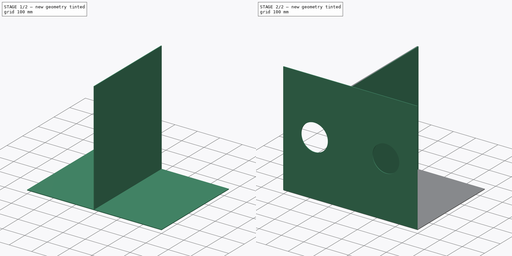
[diagram: build sequence overview — one tinted view per stage of 2, left to right]
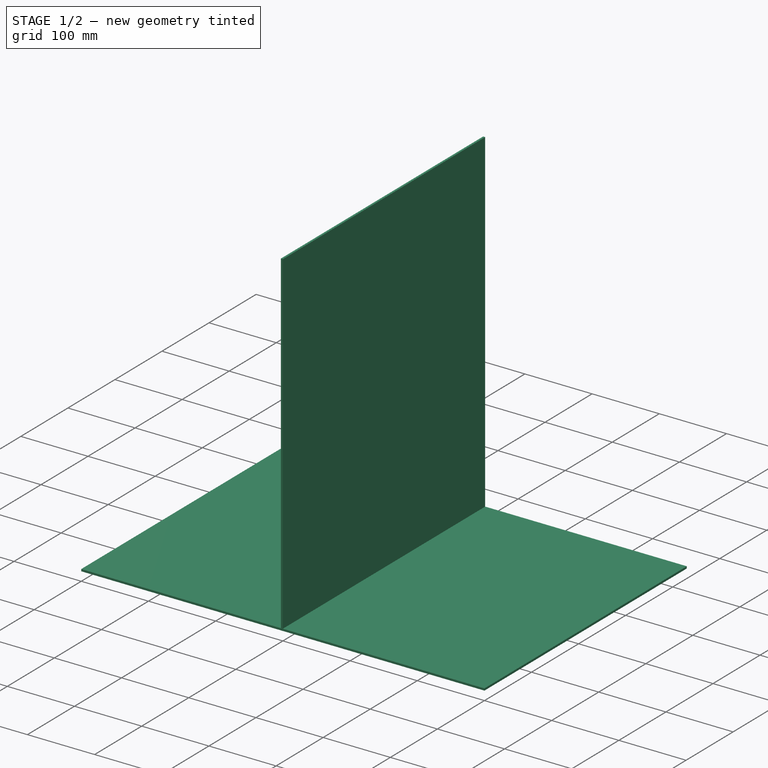
[diagram: stage 1 of 2 — iso view after this stage's code; geometry added in this stage tinted green]
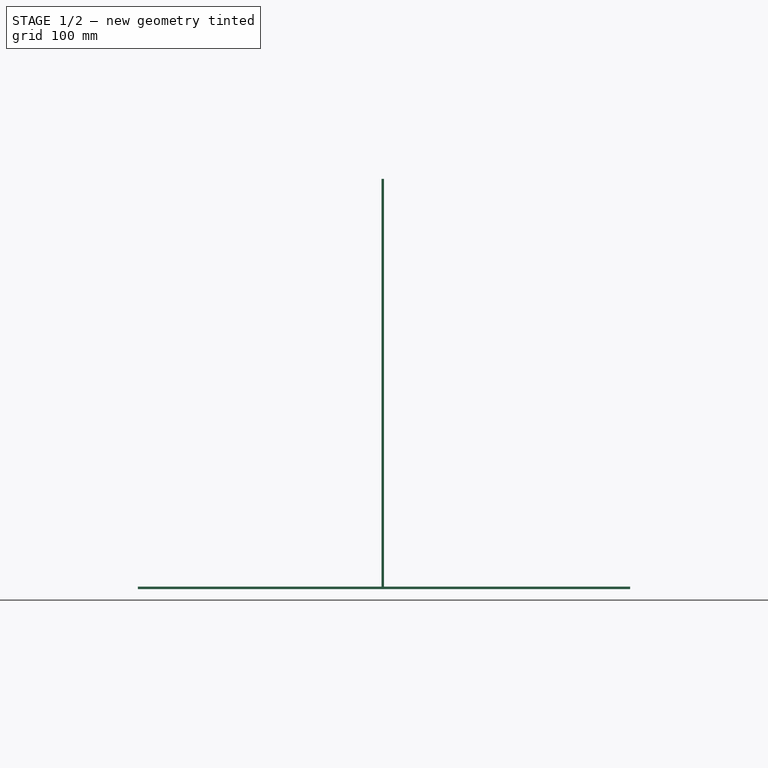
[diagram: stage 1 of 2 — front view after this stage's code; geometry added in this stage tinted green]
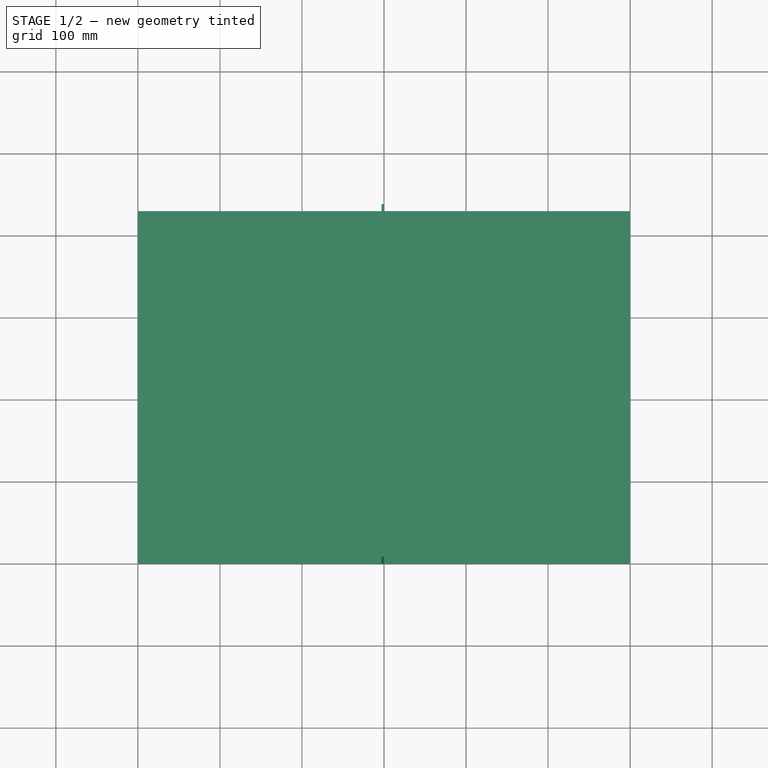
[diagram: stage 1 of 2 — top view after this stage's code; geometry added in this stage tinted green]
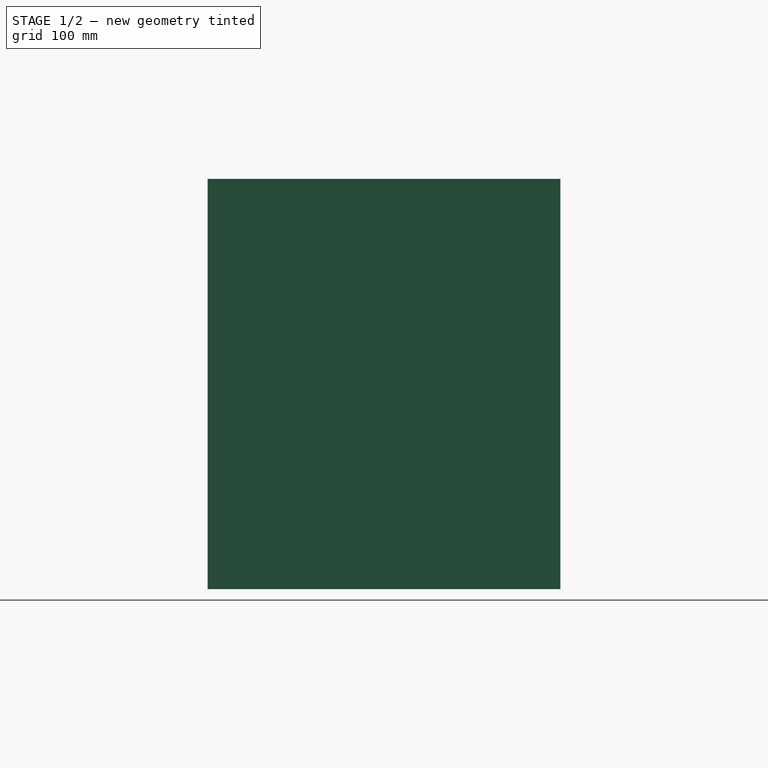
[diagram: stage 1 of 2 — right view after this stage's code; geometry added in this stage tinted green]
FCSTD DOCUMENT  (FreeCAD 0.18.4R)
Label: AerosolBox
Comment: https://designlibre.org/license-en/\nStarting from the topic that matters most in these times COVID-19 I have read a note from a protector for doctors called AerosolBox with a CC design for reproducti... (+266 chars)
License: Other
LicenseURL: https://designlibre.org/license-en/
objects: Sketcher::SketchObject×4, PartDesign::Pad×4, PartDesign::Body×4, Spreadsheet::Sheet×1, App::Part×1
note: 16 computed .brp shape members not serialized (recipe doc carries the construction recipe); baked Part::Feature solids carry a one-line shape summary decoded from their .brp

FEATURE [PartDesign::Body] Body  label="Lateral derecha"
  Group = -> [Sketch001,Pad001]
  Origin = -> Origin
  Placement = pos=(-300,0,0) rot=(0,0,1;0rad)
  Tip = -> Pad001
  expr: Placement.Base.x = -Spreadsheet.length / 2
FEATURE [Sketcher::SketchObject] Sketch002
  MapMode = 5
  Placement = pos=(0,0,0) rot=(0.57735,0.57735,0.57735;2.0944rad)
  Support = -> [YZ_Plane006]
  expr: Constraints[10] = Spreadsheet.width
  expr: Constraints[9] = Spreadsheet.heigth - Spreadsheet.thickness
  sketch-geometry (4):
    g0: LineSegment StartX=0 StartY=0 StartZ=0 EndX=430 EndY=0 EndZ=0
    g1: LineSegment StartX=430 StartY=0 StartZ=0 EndX=430 EndY=497 EndZ=0
    g2: LineSegment StartX=430 StartY=497 StartZ=0 EndX=0 EndY=497 EndZ=0
    g3: LineSegment StartX=0 StartY=497 StartZ=0 EndX=0 EndY=0 EndZ=0
  constraints (11):
    c: Coincident(g0,g1)
    c: Coincident(g1,g2)
    c: Coincident(g2,g3)
    c: Coincident(g3,g0)
    c: Horizontal(g0)
    c: Horizontal(g2)
    c: Vertical(g1)
    c: Vertical(g3)
    c: Coincident(g0,g-1)
    c: DistanceY(g1,g1) = 497
    c: DistanceX(g2,g2) = 430
FEATURE [PartDesign::Pad] Pad002
  Length = 3
  Length2 = 100
  Placement = pos=(0,0,0) rot=(0.57735,0.57735,0.57735;2.0944rad)
  Profile = -> Sketch002
  Refine = true
  Reversed = true
  Type = 0
  expr: Length = Spreadsheet.thickness
FEATURE [PartDesign::Body] Body004  label="Lateral izquierda"
  Group = -> [Sketch002,Pad002]
  Origin = -> Origin006
  Placement = pos=(300,0,0) rot=(0,0,1;0rad)
  Tip = -> Pad002
  expr: Placement.Base.x = Spreadsheet.length / 2
FEATURE [Sketcher::SketchObject] Sketch003
  MapMode = 5
  Support = -> [XY_Plane007]
  expr: Constraints[10] = Spreadsheet.width
  expr: Constraints[9] = Spreadsheet.length
  sketch-geometry (4):
    g0: LineSegment StartX=-300 StartY=0 StartZ=0 EndX=300 EndY=0 EndZ=0
    g1: LineSegment StartX=300 StartY=0 StartZ=0 EndX=300 EndY=430 EndZ=0
    g2: LineSegment StartX=300 StartY=430 StartZ=0 EndX=-300 EndY=430 EndZ=0
    g3: LineSegment StartX=-300 StartY=430 StartZ=0 EndX=-300 EndY=0 EndZ=0
  constraints (11):
    c: Coincident(g0,g1)
    c: Coincident(g1,g2)
    c: Coincident(g2,g3)
    c: Coincident(g3,g0)
    c: Horizontal(g0)
    c: Horizontal(g2)
    c: Vertical(g1)
    c: Vertical(g3)
    c: Symmetric(g0,g0,g-1)
    c: DistanceX(g2,g2) = 600
    c: DistanceY(g3,g3) = 430
FEATURE [PartDesign::Pad] Pad003
  Length = 3
  Length2 = 100
  Profile = -> Sketch003
  Refine = true
  Reversed = true
  Type = 0
  expr: Length = Spreadsheet.thickness
FEATURE [PartDesign::Body] Body005
  Group = -> [Sketch003,Pad003]
  Origin = -> Origin007
  Placement = pos=(0,0,500) rot=(0,0,1;0rad)
  Tip = -> Pad003
  expr: Placement.Base.z = Spreadsheet.heigth
FEATURE [App::Part] Part001  label="AerosolBox"
  Group = -> [Body001,Body,Body004,Body005]
  Origin = -> Origin002
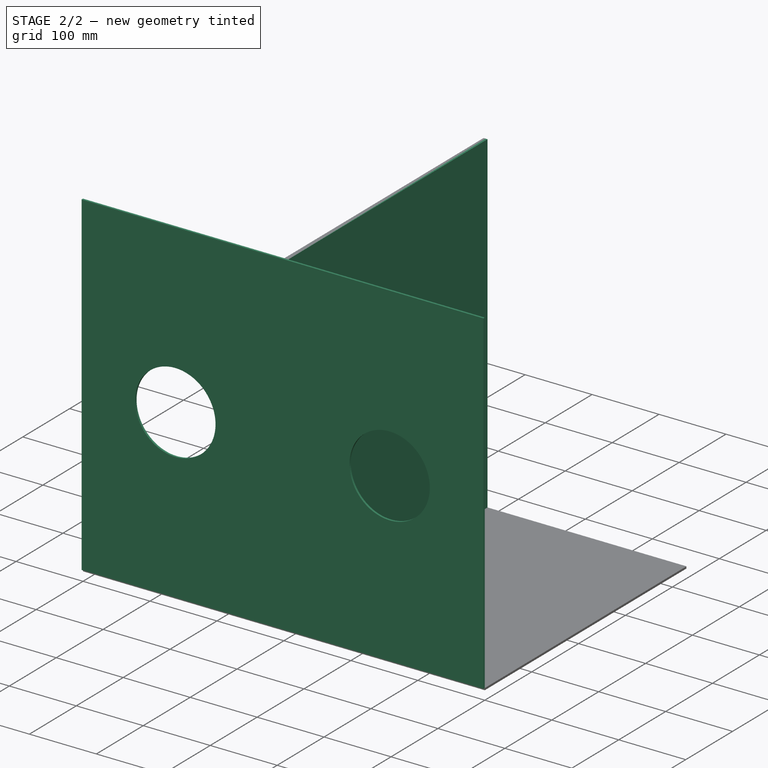
[diagram: stage 2 of 2 — iso view after this stage's code; geometry added in this stage tinted green]
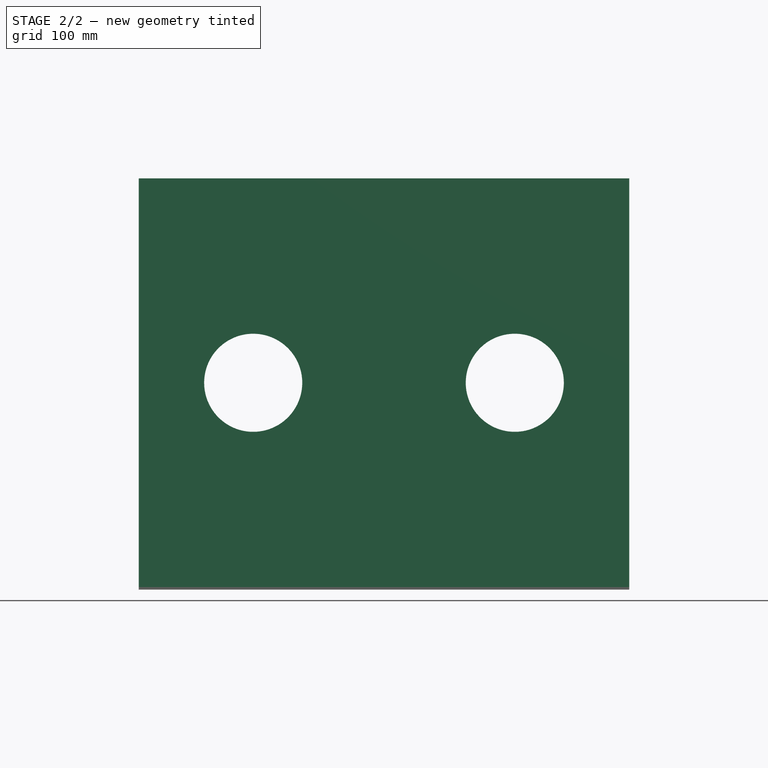
[diagram: stage 2 of 2 — front view after this stage's code; geometry added in this stage tinted green]
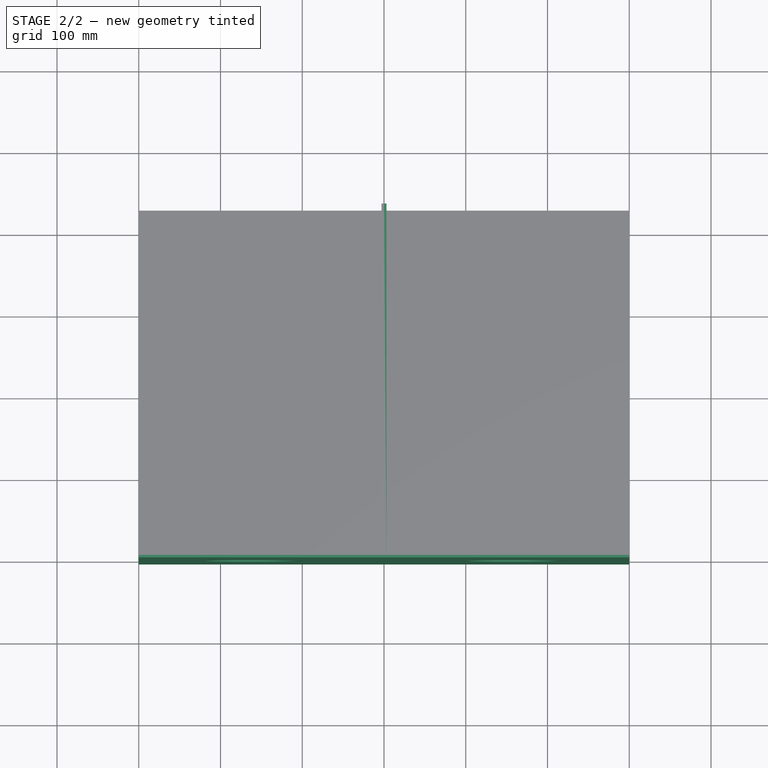
[diagram: stage 2 of 2 — top view after this stage's code; geometry added in this stage tinted green]
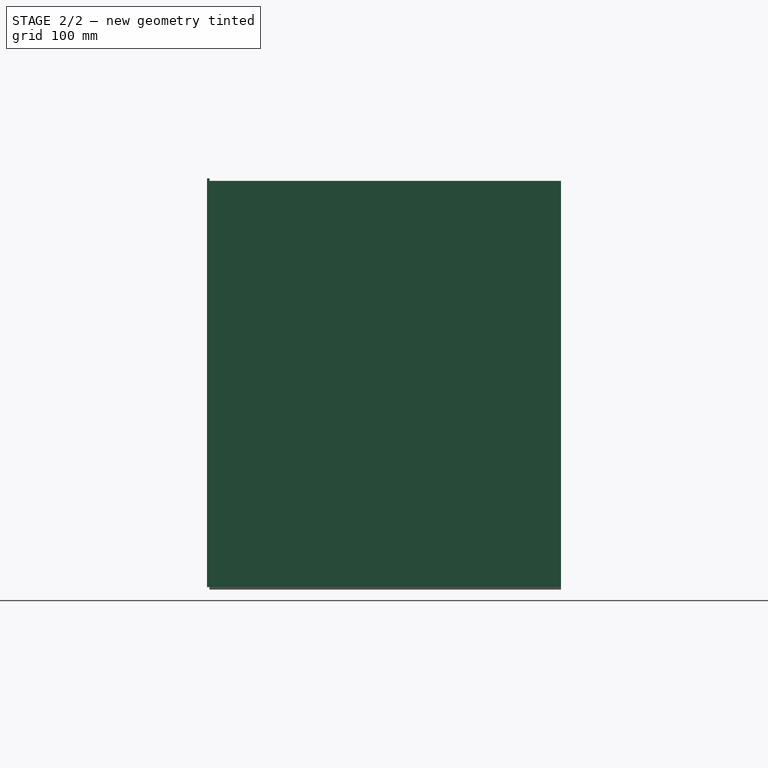
[diagram: stage 2 of 2 — right view after this stage's code; geometry added in this stage tinted green]
FEATURE [Spreadsheet::Sheet] Spreadsheet
  cells = B2=Dimension; A4=width; B4(width)=430; A5=length; B5(length)=600; A6=heigth; B6(heigth)=500; A7=thickness; B7(thickness)=3; A8=holearm; B8(holearm)=120; A9=arm; B9(arms)=320; A11=All dimension are in mm
FEATURE [Sketcher::SketchObject] Sketch
  MapMode = 5
  Placement = pos=(0,0,0) rot=(1,0,0;1.5708rad)
  Support = -> [XZ_Plane002]
  expr: Constraints[15] = Spreadsheet.arms
  expr: Constraints[12] = Spreadsheet.holearm / 2
  expr: Constraints[10] = Spreadsheet.length
  expr: Constraints[9] = Spreadsheet.heigth
  sketch-geometry (6):
    g0: LineSegment StartX=-300 StartY=500 StartZ=0 EndX=300 EndY=500 EndZ=0
    g1: LineSegment StartX=300 StartY=500 StartZ=0 EndX=300 EndY=0 EndZ=0
    g2: LineSegment StartX=300 StartY=0 StartZ=0 EndX=-300 EndY=0 EndZ=0
    g3: LineSegment StartX=-300 StartY=0 StartZ=0 EndX=-300 EndY=500 EndZ=0
    g4: Circle CenterX=-160 CenterY=250 CenterZ=0 NormalX=0 NormalY=0 NormalZ=1 AngleXU=0 Radius=60
    g5: Circle CenterX=160 CenterY=250 CenterZ=0 NormalX=0 NormalY=0 NormalZ=1 AngleXU=0 Radius=60
  constraints (16):
    c: Coincident(g0,g1)
    c: Coincident(g1,g2)
    c: Coincident(g2,g3)
    c: Coincident(g3,g0)
    c: Horizontal(g0)
    c: Horizontal(g2)
    c: Vertical(g1)
    c: Vertical(g3)
    c: Symmetric(g1,g2,g-1)
    c: DistanceY(g3,g3) = 500
    c: DistanceX(g0,g0) = 600
    c: Symmetric(g5,g4,g-2)
    c: Radius(g4) = 60
    c: Equal(g5,g4)
    c: DistanceY(g2,g4) = 250
    c: DistanceX(g4,g5) = 320
FEATURE [PartDesign::Pad] Pad
  Length = 3
  Length2 = 100
  Placement = pos=(0,0,0) rot=(1,0,0;1.5708rad)
  Profile = -> Sketch
  Refine = true
  Type = 0
  expr: Length = Spreadsheet.thickness
FEATURE [PartDesign::Body] Body001  label="Frente"
  Group = -> [Sketch,Pad]
  Origin = -> Origin003
  Tip = -> Pad
FEATURE [Sketcher::SketchObject] Sketch001
  MapMode = 5
  Placement = pos=(0,0,0) rot=(0.57735,0.57735,0.57735;2.0944rad)
  Support = -> [YZ_Plane]
  expr: Constraints[10] = Spreadsheet.width
  expr: Constraints[9] = Spreadsheet.heigth - Spreadsheet.thickness
  sketch-geometry (4):
    g0: LineSegment StartX=0 StartY=0 StartZ=0 EndX=430 EndY=0 EndZ=0
    g1: LineSegment StartX=430 StartY=0 StartZ=0 EndX=430 EndY=497 EndZ=0
    g2: LineSegment StartX=430 StartY=497 StartZ=0 EndX=0 EndY=497 EndZ=0
    g3: LineSegment StartX=0 StartY=497 StartZ=0 EndX=0 EndY=0 EndZ=0
  constraints (11):
    c: Coincident(g0,g1)
    c: Coincident(g1,g2)
    c: Coincident(g2,g3)
    c: Coincident(g3,g0)
    c: Horizontal(g0)
    c: Horizontal(g2)
    c: Vertical(g1)
    c: Vertical(g3)
    c: Coincident(g0,g-1)
    c: DistanceY(g1,g1) = 497
    c: DistanceX(g2,g2) = 430
FEATURE [PartDesign::Pad] Pad001
  Length = 3
  Length2 = 100
  Placement = pos=(0,0,0) rot=(0.57735,0.57735,0.57735;2.0944rad)
  Profile = -> Sketch001
  Refine = true
  Type = 0
  expr: Length = Spreadsheet.thickness
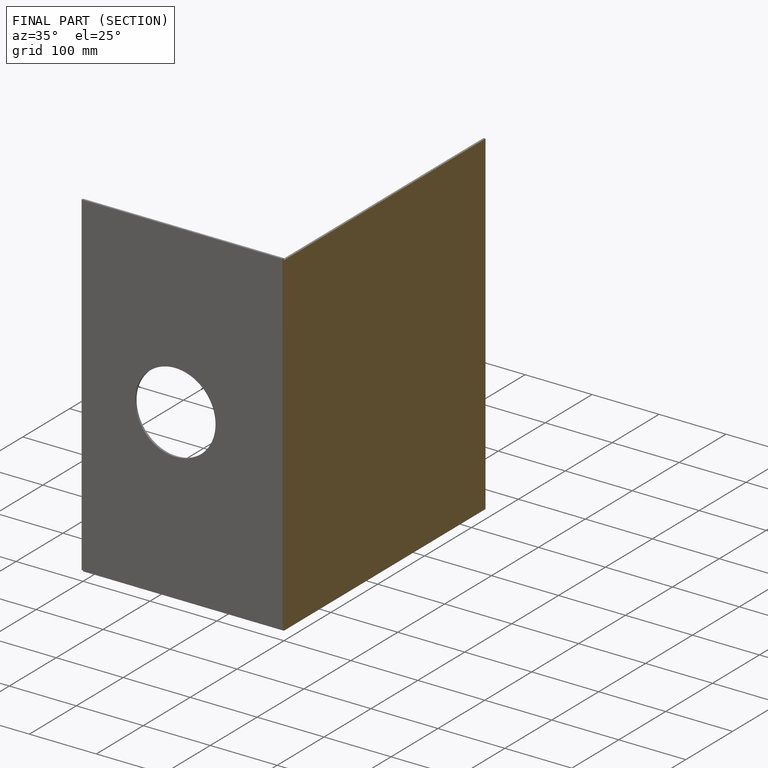
[diagram: finished part — half-section view (interior)]
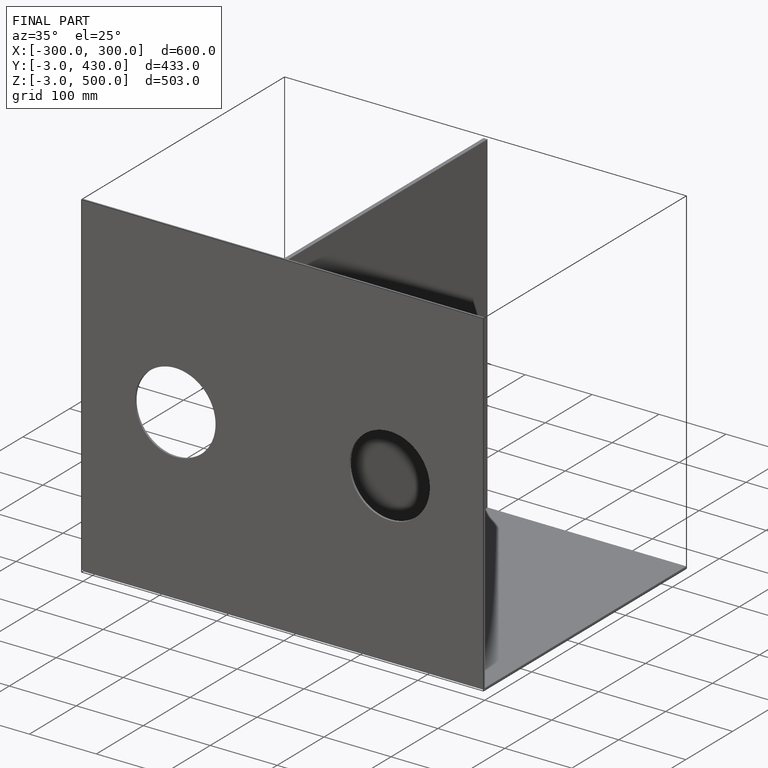
[diagram: finished part — iso view with bounding-box wireframe]
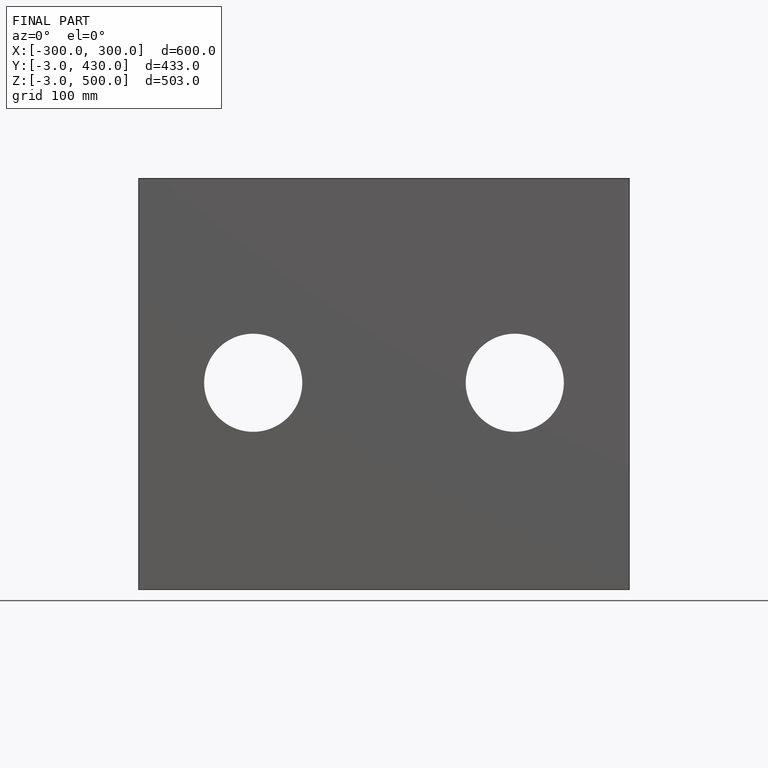
[diagram: finished part — front view with bounding-box wireframe]
